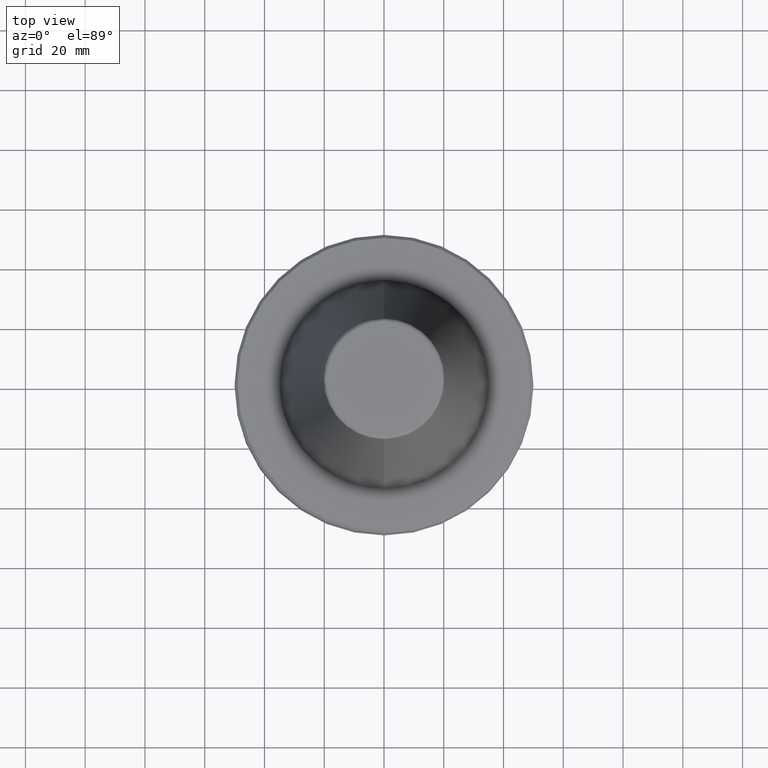
[diagram: clean part render]
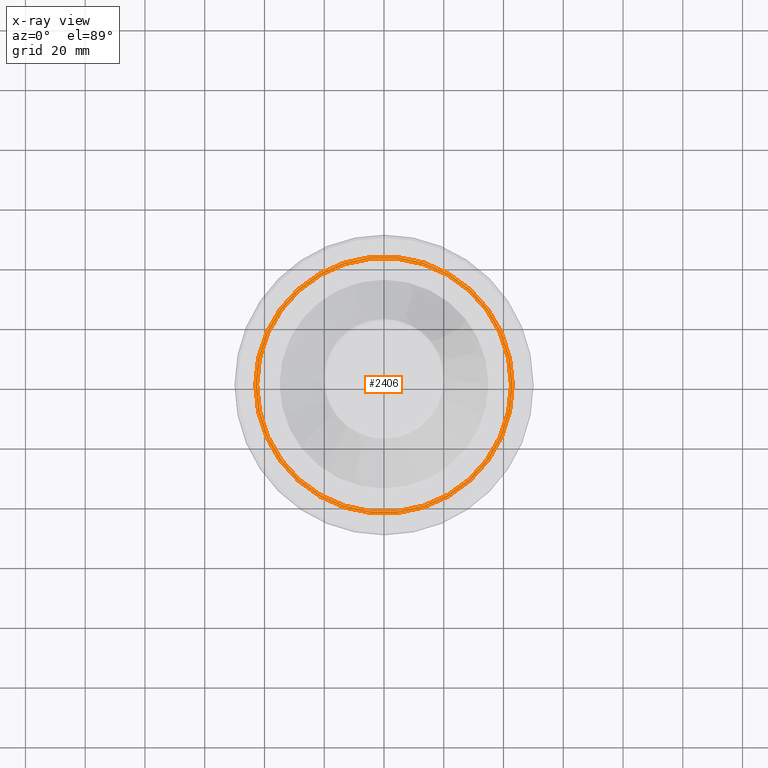
[diagram: x-ray — body ghosted, one internal face saturated and labeled with its STEP entity id]
A machine part, top view, then the same camera in x-ray: the body is ghosted and one INTERNAL B-rep face — a face not visible from any outside direction — is saturated and labeled: STEP entity #2406.
In plain terms, the highlighted planar face has unit normal (0, 0, 1).
Its self-contained STEP definition (entity closure, byte-faithful):
#51 = CIRCLE ( 'NONE', #1113, 43.07217782649103600 ) ;
#304 = EDGE_CURVE ( 'NONE', #1759, #520, #51, .T. ) ;
#402 = DIRECTION ( 'NONE',  ( 1.000000000000000000, 0.0000000000000000000, 0.0000000000000000000 ) ) ;
#405 = DIRECTION ( 'NONE',  ( 0.0000000000000000000, 0.0000000000000000000, 1.000000000000000000 ) ) ;
#406 = CARTESIAN_POINT ( 'NONE',  ( 0.0000000000000000000, 0.0000000000000000000, -19.70000000000001000 ) ) ;
#422 = DIRECTION ( 'NONE',  ( 1.000000000000000000, 0.0000000000000000000, 0.0000000000000000000 ) ) ;
#427 = DIRECTION ( 'NONE',  ( 1.000000000000000000, 0.0000000000000000000, 0.0000000000000000000 ) ) ;
#429 = DIRECTION ( 'NONE',  ( -0.0000000000000000000, -0.0000000000000000000, -1.000000000000000000 ) ) ;
#432 = CARTESIAN_POINT ( 'NONE',  ( 0.0000000000000000000, 0.0000000000000000000, -19.70000000000001000 ) ) ;
#460 = CARTESIAN_POINT ( 'NONE',  ( -42.50000000000000000, 5.204748896376250900E-015, -19.70000000000001000 ) ) ;
#520 = VERTEX_POINT ( 'NONE', #1001 ) ;
#522 = EDGE_LOOP ( 'NONE', ( #1187, #2169 ) ) ;
#530 = AXIS2_PLACEMENT_3D ( 'NONE', #432, #429, #427 ) ;
#603 = FACE_OUTER_BOUND ( 'NONE', #816, .T. ) ;
#612 = CARTESIAN_POINT ( 'NONE',  ( 0.0000000000000000000, 0.0000000000000000000, -19.70000000000001000 ) ) ;
#620 = VERTEX_POINT ( 'NONE', #2735 ) ;
#634 = ORIENTED_EDGE ( 'NONE', *, *, #304, .F. ) ;
#816 = EDGE_LOOP ( 'NONE', ( #2693, #634 ) ) ;
#818 = AXIS2_PLACEMENT_3D ( 'NONE', #406, #405, #402 ) ;
#879 = CIRCLE ( 'NONE', #818, 43.07217782649103600 ) ;
#1001 = CARTESIAN_POINT ( 'NONE',  ( 43.07217782649103600, 0.0000000000000000000, -19.70000000000001000 ) ) ;
#1006 = DIRECTION ( 'NONE',  ( -0.0000000000000000000, -0.0000000000000000000, -1.000000000000000000 ) ) ;
#1020 = VERTEX_POINT ( 'NONE', #460 ) ;
#1057 = EDGE_CURVE ( 'NONE', #1020, #620, #2087, .T. ) ;
#1095 = EDGE_CURVE ( 'NONE', #520, #1759, #879, .T. ) ;
#1113 = AXIS2_PLACEMENT_3D ( 'NONE', #1428, #1497, #2181 ) ;
#1187 = ORIENTED_EDGE ( 'NONE', *, *, #1647, .F. ) ;
#1428 = CARTESIAN_POINT ( 'NONE',  ( 0.0000000000000000000, 0.0000000000000000000, -19.70000000000001000 ) ) ;
#1497 = DIRECTION ( 'NONE',  ( 0.0000000000000000000, 0.0000000000000000000, 1.000000000000000000 ) ) ;
#1582 = DIRECTION ( 'NONE',  ( 1.000000000000000000, 0.0000000000000000000, -0.0000000000000000000 ) ) ;
#1584 = DIRECTION ( 'NONE',  ( 0.0000000000000000000, 0.0000000000000000000, 1.000000000000000000 ) ) ;
#1587 = PLANE ( 'NONE',  #2070 ) ;
#1605 = CARTESIAN_POINT ( 'NONE',  ( 0.0000000000000000000, 43.07217782649103600, -19.70000000000000300 ) ) ;
#1647 = EDGE_CURVE ( 'NONE', #620, #1020, #1858, .T. ) ;
#1759 = VERTEX_POINT ( 'NONE', #2631 ) ;
#1858 = CIRCLE ( 'NONE', #2336, 42.50000000000000000 ) ;
#2070 = AXIS2_PLACEMENT_3D ( 'NONE', #1605, #1584, #1582 ) ;
#2087 = CIRCLE ( 'NONE', #530, 42.50000000000000000 ) ;
#2169 = ORIENTED_EDGE ( 'NONE', *, *, #1057, .F. ) ;
#2181 = DIRECTION ( 'NONE',  ( 1.000000000000000000, 0.0000000000000000000, 0.0000000000000000000 ) ) ;
#2336 = AXIS2_PLACEMENT_3D ( 'NONE', #612, #1006, #422 ) ;
#2346 = FACE_BOUND ( 'NONE', #522, .T. ) ;
#2406 = ADVANCED_FACE ( 'NONE', ( #603, #2346 ), #1587, .F. ) ;
#2631 = CARTESIAN_POINT ( 'NONE',  ( -43.07217782649103600, 5.699027233244276000E-015, -19.70000000000001000 ) ) ;
#2693 = ORIENTED_EDGE ( 'NONE', *, *, #1095, .F. ) ;
#2735 = CARTESIAN_POINT ( 'NONE',  ( 42.50000000000000000, 0.0000000000000000000, -19.70000000000001000 ) ) ;